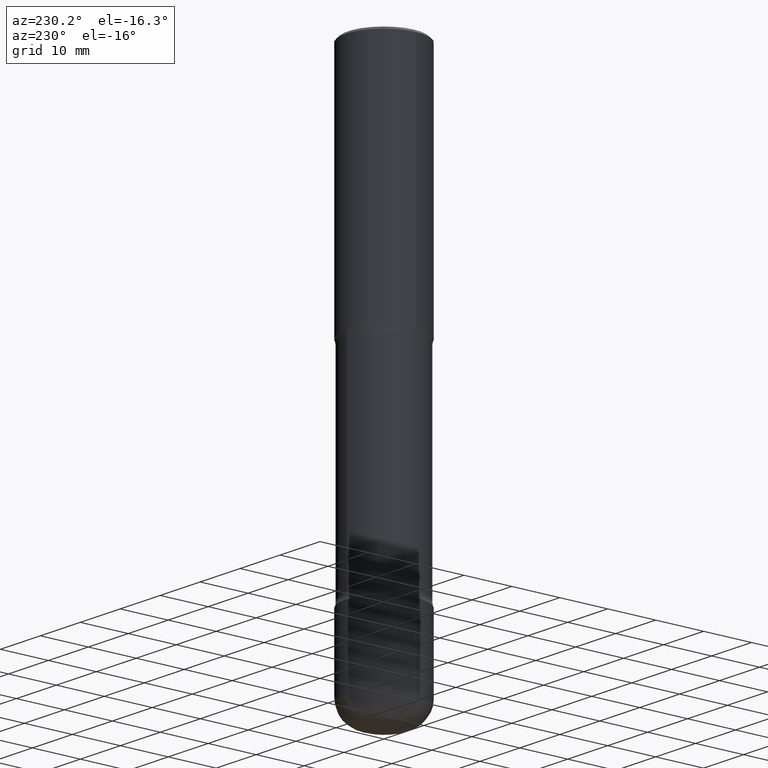
[diagram: clean part render]
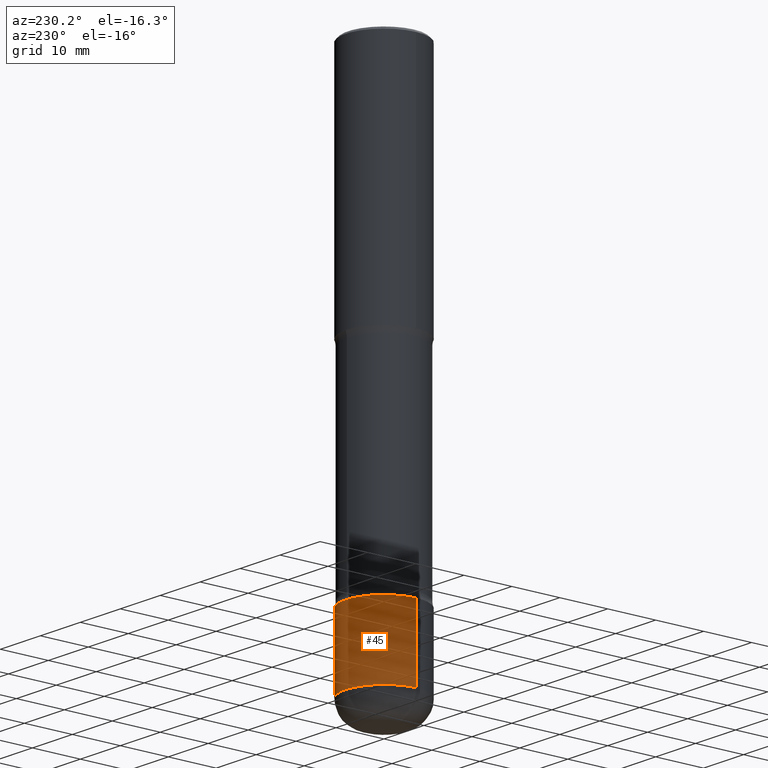
[diagram: same view with one face highlighted and labeled with its STEP entity id]
A machine part, auxiliary view. The second image highlights one B-rep face of the part: STEP entity #45.
In plain terms, the highlighted cylindrical surface (partial cylindrical patch) has radius 7.9997 mm, axis along (-0, 0, 1).
Its self-contained STEP definition (entity closure, byte-faithful):
#9 = ORIENTED_EDGE ( 'NONE', *, *, #55, .F. ) ;
#11 = CARTESIAN_POINT ( 'NONE',  ( 0.3149500000000002298, -1.525812259887842581E-14, -3.740200000000000191 ) ) ;
#26 = DIRECTION ( 'NONE',  ( -2.445468806185136877E-29, 3.491481338843145188E-15, 1.000000000000000000 ) ) ;
#28 = DIRECTION ( 'NONE',  ( -2.445468806185136597E-29, 3.491481338843145583E-15, 1.000000000000000000 ) ) ;
#33 = DIRECTION ( 'NONE',  ( 1.000000000000000000, -6.982962677686263555E-15, 0.000000000000000000 ) ) ;
#39 = VERTEX_POINT ( 'NONE', #291 ) ;
#45 = ADVANCED_FACE ( 'NONE', ( #110 ), #272, .T. ) ;
#53 = AXIS2_PLACEMENT_3D ( 'NONE', #205, #329, #371 ) ;
#55 = EDGE_CURVE ( 'NONE', #39, #133, #426, .T. ) ;
#61 = ORIENTED_EDGE ( 'NONE', *, *, #507, .T. ) ;
#88 = ORIENTED_EDGE ( 'NONE', *, *, #521, .F. ) ;
#110 = FACE_OUTER_BOUND ( 'NONE', #388, .T. ) ;
#133 = VERTEX_POINT ( 'NONE', #11 ) ;
#185 = VECTOR ( 'NONE', #516, 39.37007874015748143 ) ;
#186 = VECTOR ( 'NONE', #26, 39.37007874015748143 ) ;
#205 = CARTESIAN_POINT ( 'NONE',  ( 9.146542428893648262E-29, -1.305883850354113437E-14, -3.740200000000000191 ) ) ;
#229 = CARTESIAN_POINT ( 'NONE',  ( -0.3149500000000002298, -1.185184402255813608E-14, -3.740200000000000191 ) ) ;
#232 = CIRCLE ( 'NONE', #302, 0.3149500000000002853 ) ;
#272 = CYLINDRICAL_SURFACE ( 'NONE', #357, 0.3149500000000002853 ) ;
#278 = VERTEX_POINT ( 'NONE', #229 ) ;
#289 = CARTESIAN_POINT ( 'NONE',  ( -0.3149500000000002853, 2.237854346276437562E-15, -1.549218606675783797E-29 ) ) ;
#291 = CARTESIAN_POINT ( 'NONE',  ( 0.3149500000000003408, -1.731984232946530120E-14, -4.330700000000000216 ) ) ;
#293 = DIRECTION ( 'NONE',  ( -2.445468806185136597E-29, 3.491481338843145583E-15, 1.000000000000000000 ) ) ;
#294 = DIRECTION ( 'NONE',  ( 1.000000000000000000, -6.982962677686267499E-15, 4.876176775795936353E-29 ) ) ;
#302 = AXIS2_PLACEMENT_3D ( 'NONE', #400, #293, #33 ) ;
#311 = CIRCLE ( 'NONE', #53, 0.3149500000000002298 ) ;
#324 = CARTESIAN_POINT ( 'NONE',  ( -0.3149500000000003408, -1.288270388785157219E-14, -4.330700000000000216 ) ) ;
#329 = DIRECTION ( 'NONE',  ( -2.445468806185136597E-29, 3.491481338843145583E-15, 1.000000000000000000 ) ) ;
#347 = VERTEX_POINT ( 'NONE', #324 ) ;
#357 = AXIS2_PLACEMENT_3D ( 'NONE', #421, #28, #294 ) ;
#371 = DIRECTION ( 'NONE',  ( 1.000000000000000000, -6.982962677686264344E-15, 0.000000000000000000 ) ) ;
#388 = EDGE_LOOP ( 'NONE', ( #61, #500, #88, #9 ) ) ;
#400 = CARTESIAN_POINT ( 'NONE',  ( 1.059059175894597327E-28, -1.512055823412801291E-14, -4.330700000000000216 ) ) ;
#421 = CARTESIAN_POINT ( 'NONE',  ( 0.000000000000000000, 0.000000000000000000, 0.000000000000000000 ) ) ;
#426 = LINE ( 'NONE', #551, #185 ) ;
#500 = ORIENTED_EDGE ( 'NONE', *, *, #514, .T. ) ;
#507 = EDGE_CURVE ( 'NONE', #39, #347, #232, .T. ) ;
#514 = EDGE_CURVE ( 'NONE', #347, #278, #552, .T. ) ;
#516 = DIRECTION ( 'NONE',  ( -2.445468806185136877E-29, 3.491481338843145188E-15, 1.000000000000000000 ) ) ;
#521 = EDGE_CURVE ( 'NONE', #133, #278, #311, .T. ) ;
#551 = CARTESIAN_POINT ( 'NONE',  ( 0.3149500000000002853, -2.199284095337291843E-15, 1.535751875536931531E-29 ) ) ;
#552 = LINE ( 'NONE', #289, #186 ) ;